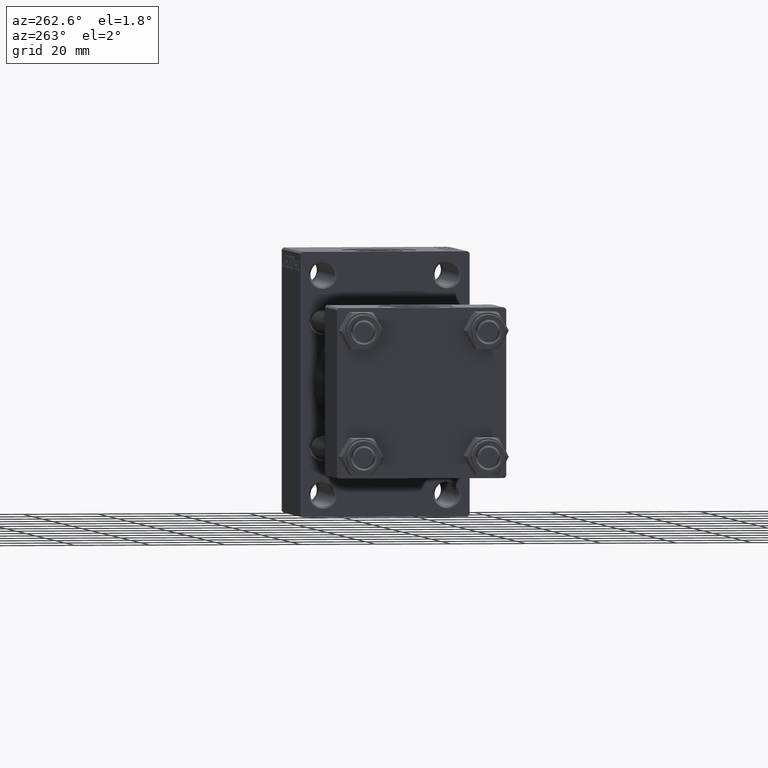
[diagram: clean part render]
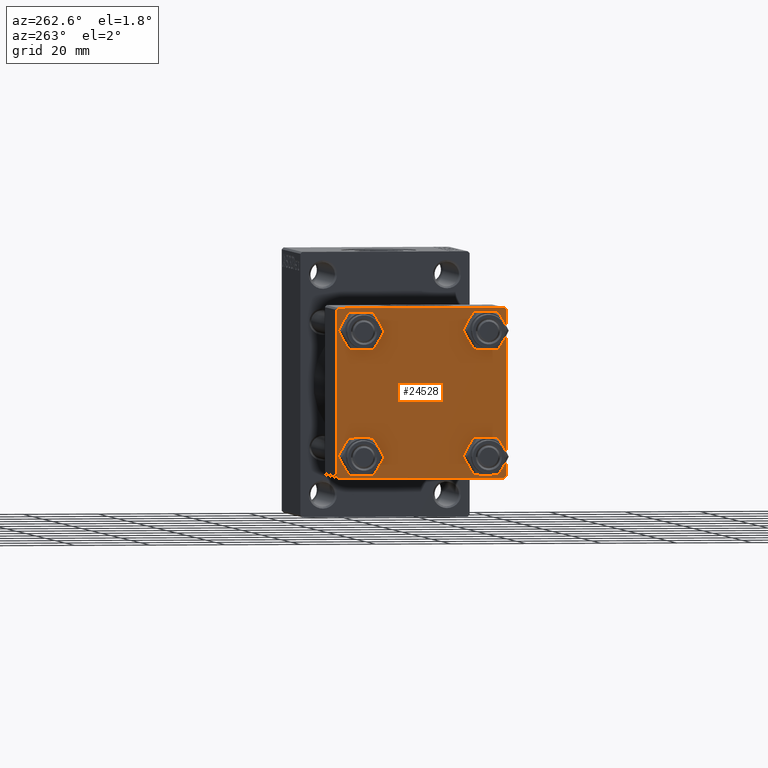
[diagram: same view with one face highlighted and labeled with its STEP entity id]
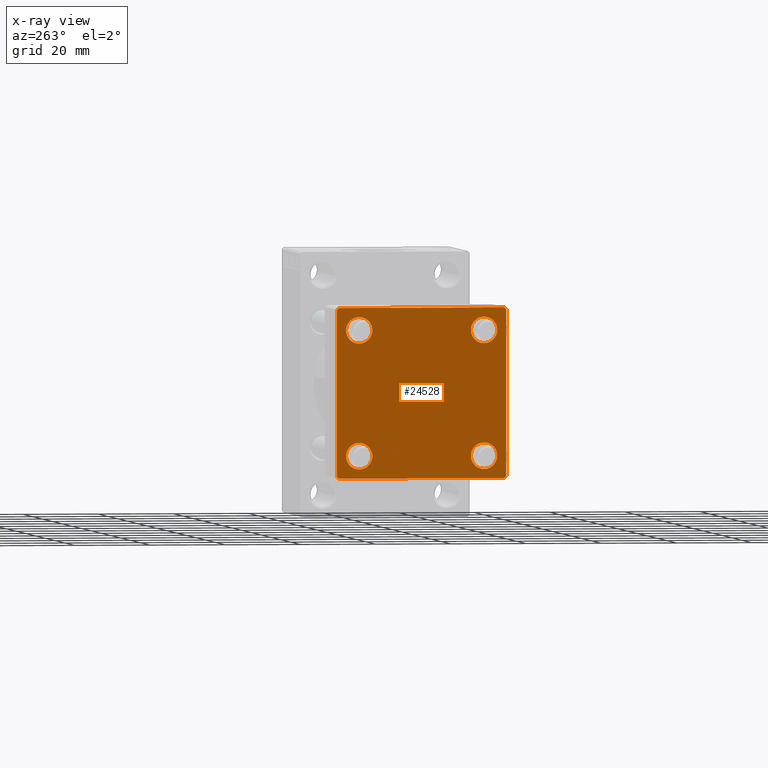
[diagram: x-ray of the same camera — body ghosted, the highlighted face saturated]
A machine part, auxiliary view. The second image highlights one B-rep face of the part: STEP entity #24528.
The next image is the same camera in x-ray: the body ghosted, the highlighted face saturated — about 0% of this face is hidden behind the body in this view.
In plain terms, the highlighted planar face has unit normal (-1, 0, 0).
Its self-contained STEP definition (entity closure, byte-faithful):
#201 = ORIENTED_EDGE ( 'NONE', *, *, #35946, .T. ) ;
#329 = EDGE_CURVE ( 'NONE', #44035, #12001, #27100, .T. ) ;
#506 = EDGE_CURVE ( 'NONE', #31605, #19519, #4771, .T. ) ;
#1425 = AXIS2_PLACEMENT_3D ( 'NONE', #5136, #18868, #41248 ) ;
#1688 = VECTOR ( 'NONE', #26811, 1000.000000000000000 ) ;
#2808 = LINE ( 'NONE', #38946, #22481 ) ;
#2840 = CARTESIAN_POINT ( 'NONE',  ( 0.000000000000000000, 21.99999999999999289, -22.49999999999999645 ) ) ;
#3974 = DIRECTION ( 'NONE',  ( 0.000000000000000000, 0.7071067811865474617, -0.7071067811865474617 ) ) ;
#4089 = EDGE_CURVE ( 'NONE', #25803, #13937, #38972, .T. ) ;
#4208 = CARTESIAN_POINT ( 'NONE',  ( 0.000000000000000000, 22.24999999999999645, 22.24999999999999645 ) ) ;
#4771 = CIRCLE ( 'NONE', #24015, 3.499999999999996003 ) ;
#4791 = LINE ( 'NONE', #15161, #37507 ) ;
#5136 = CARTESIAN_POINT ( 'NONE',  ( 0.000000000000000000, 0.000000000000000000, 0.000000000000000000 ) ) ;
#5433 = EDGE_LOOP ( 'NONE', ( #39262, #10655 ) ) ;
#7107 = VECTOR ( 'NONE', #23603, 999.9999999999998863 ) ;
#7130 = EDGE_CURVE ( 'NONE', #46328, #10516, #47131, .T. ) ;
#7485 = VERTEX_POINT ( 'NONE', #2840 ) ;
#7600 = LINE ( 'NONE', #4208, #40529 ) ;
#8158 = DIRECTION ( 'NONE',  ( 0.000000000000000000, -1.000000000000000000, -7.709882115452476934E-17 ) ) ;
#8304 = VERTEX_POINT ( 'NONE', #45972 ) ;
#8648 = DIRECTION ( 'NONE',  ( -0.000000000000000000, -0.7071067811865426878, -0.7071067811865524577 ) ) ;
#8864 = ORIENTED_EDGE ( 'NONE', *, *, #7130, .T. ) ;
#9882 = ORIENTED_EDGE ( 'NONE', *, *, #18833, .T. ) ;
#10516 = VERTEX_POINT ( 'NONE', #21736 ) ;
#10655 = ORIENTED_EDGE ( 'NONE', *, *, #45011, .T. ) ;
#10685 = ORIENTED_EDGE ( 'NONE', *, *, #506, .T. ) ;
#11343 = CIRCLE ( 'NONE', #13634, 3.499999999999996003 ) ;
#11382 = AXIS2_PLACEMENT_3D ( 'NONE', #31582, #42180, #13050 ) ;
#11691 = AXIS2_PLACEMENT_3D ( 'NONE', #31757, #17064, #46423 ) ;
#11740 = CARTESIAN_POINT ( 'NONE',  ( 0.000000000000000000, 16.59999999999999787, -16.60000000000000497 ) ) ;
#11749 = CARTESIAN_POINT ( 'NONE',  ( 0.000000000000000000, 16.59999999999999787, 16.60000000000000497 ) ) ;
#11781 = CARTESIAN_POINT ( 'NONE',  ( 0.000000000000000000, 22.50000000000000000, 22.50000000000000355 ) ) ;
#11864 = CARTESIAN_POINT ( 'NONE',  ( 0.000000000000000000, 16.59999999999999787, -20.10000000000000142 ) ) ;
#11891 = FACE_OUTER_BOUND ( 'NONE', #31098, .T. ) ;
#12001 = VERTEX_POINT ( 'NONE', #38911 ) ;
#12003 = VECTOR ( 'NONE', #34304, 1000.000000000000000 ) ;
#12783 = DIRECTION ( 'NONE',  ( 1.000000000000000000, -0.000000000000000000, 0.000000000000000000 ) ) ;
#12834 = CARTESIAN_POINT ( 'NONE',  ( 0.000000000000000000, 16.59999999999999787, 16.60000000000000497 ) ) ;
#13050 = DIRECTION ( 'NONE',  ( 0.000000000000000000, 0.000000000000000000, 1.000000000000000000 ) ) ;
#13424 = DIRECTION ( 'NONE',  ( 0.000000000000000000, -0.7071067811865426878, 0.7071067811865524577 ) ) ;
#13634 = AXIS2_PLACEMENT_3D ( 'NONE', #45744, #12783, #27470 ) ;
#13806 = AXIS2_PLACEMENT_3D ( 'NONE', #12834, #30419, #19828 ) ;
#13937 = VERTEX_POINT ( 'NONE', #35226 ) ;
#14466 = EDGE_CURVE ( 'NONE', #21793, #13937, #44745, .T. ) ;
#15119 = DIRECTION ( 'NONE',  ( 0.000000000000000000, 0.000000000000000000, 1.000000000000000000 ) ) ;
#15161 = CARTESIAN_POINT ( 'NONE',  ( 0.000000000000000000, -22.50000000000000000, 22.50000000000000000 ) ) ;
#15417 = DIRECTION ( 'NONE',  ( 1.000000000000000000, -0.000000000000000000, 0.000000000000000000 ) ) ;
#15504 = FACE_BOUND ( 'NONE', #30941, .T. ) ;
#15660 = DIRECTION ( 'NONE',  ( 0.000000000000000000, 0.000000000000000000, 1.000000000000000000 ) ) ;
#15868 = AXIS2_PLACEMENT_3D ( 'NONE', #21569, #42511, #43445 ) ;
#15992 = FACE_BOUND ( 'NONE', #34298, .T. ) ;
#17001 = DIRECTION ( 'NONE',  ( 0.000000000000000000, 0.000000000000000000, 1.000000000000000000 ) ) ;
#17064 = DIRECTION ( 'NONE',  ( 1.000000000000000000, -0.000000000000000000, 0.000000000000000000 ) ) ;
#18449 = CARTESIAN_POINT ( 'NONE',  ( 0.000000000000000000, 16.59999999999999787, -13.10000000000000675 ) ) ;
#18833 = EDGE_CURVE ( 'NONE', #12001, #44035, #21218, .T. ) ;
#18868 = DIRECTION ( 'NONE',  ( -1.000000000000000000, 0.000000000000000000, -0.000000000000000000 ) ) ;
#18994 = CARTESIAN_POINT ( 'NONE',  ( 0.000000000000000000, 21.99999999999999289, 22.50000000000000355 ) ) ;
#19132 = CARTESIAN_POINT ( 'NONE',  ( 0.000000000000000000, -16.59999999999999076, -13.10000000000001030 ) ) ;
#19519 = VERTEX_POINT ( 'NONE', #23833 ) ;
#19828 = DIRECTION ( 'NONE',  ( 0.000000000000000000, 0.000000000000000000, 1.000000000000000000 ) ) ;
#20012 = ORIENTED_EDGE ( 'NONE', *, *, #14466, .F. ) ;
#20200 = CIRCLE ( 'NONE', #43211, 3.499999999999996003 ) ;
#20831 = EDGE_CURVE ( 'NONE', #21793, #8304, #7600, .T. ) ;
#21218 = CIRCLE ( 'NONE', #15868, 3.499999999999996003 ) ;
#21569 = CARTESIAN_POINT ( 'NONE',  ( 0.000000000000000000, -16.59999999999999076, 16.60000000000000853 ) ) ;
#21736 = CARTESIAN_POINT ( 'NONE',  ( 0.000000000000000000, -16.59999999999999076, -20.10000000000000497 ) ) ;
#21793 = VERTEX_POINT ( 'NONE', #18994 ) ;
#22481 = VECTOR ( 'NONE', #13424, 1000.000000000000000 ) ;
#22642 = CARTESIAN_POINT ( 'NONE',  ( 0.000000000000000000, -16.59999999999999076, -16.60000000000000853 ) ) ;
#23233 = CARTESIAN_POINT ( 'NONE',  ( 0.000000000000000000, 22.50000000000000000, 22.50000000000000355 ) ) ;
#23603 = DIRECTION ( 'NONE',  ( -0.000000000000000000, 0.7071067811865525687, 0.7071067811865425767 ) ) ;
#23645 = VERTEX_POINT ( 'NONE', #41632 ) ;
#23833 = CARTESIAN_POINT ( 'NONE',  ( 0.000000000000000000, 16.59999999999999787, 13.10000000000000675 ) ) ;
#24015 = AXIS2_PLACEMENT_3D ( 'NONE', #11749, #33421, #15119 ) ;
#24186 = VECTOR ( 'NONE', #8158, 1000.000000000000000 ) ;
#24528 = ADVANCED_FACE ( 'NONE', ( #15504, #15992, #30200, #30433, #11891 ), #30679, .T. ) ;
#25038 = VERTEX_POINT ( 'NONE', #41135 ) ;
#25207 = ORIENTED_EDGE ( 'NONE', *, *, #26107, .F. ) ;
#25373 = CIRCLE ( 'NONE', #13806, 3.499999999999996003 ) ;
#25803 = VERTEX_POINT ( 'NONE', #27014 ) ;
#26107 = EDGE_CURVE ( 'NONE', #25803, #35101, #4791, .T. ) ;
#26811 = DIRECTION ( 'NONE',  ( 0.000000000000000000, -1.000000000000000000, -2.312964634635742957E-16 ) ) ;
#26955 = LINE ( 'NONE', #41618, #40890 ) ;
#27014 = CARTESIAN_POINT ( 'NONE',  ( 0.000000000000000000, -22.50000000000000000, 22.00000000000000000 ) ) ;
#27100 = CIRCLE ( 'NONE', #11691, 3.499999999999996003 ) ;
#27119 = ORIENTED_EDGE ( 'NONE', *, *, #42503, .T. ) ;
#27470 = DIRECTION ( 'NONE',  ( 0.000000000000000000, 0.000000000000000000, 1.000000000000000000 ) ) ;
#28390 = ORIENTED_EDGE ( 'NONE', *, *, #46610, .T. ) ;
#29113 = ORIENTED_EDGE ( 'NONE', *, *, #39917, .T. ) ;
#30200 = FACE_BOUND ( 'NONE', #5433, .T. ) ;
#30419 = DIRECTION ( 'NONE',  ( 1.000000000000000000, -0.000000000000000000, 0.000000000000000000 ) ) ;
#30433 = FACE_BOUND ( 'NONE', #34430, .T. ) ;
#30679 = PLANE ( 'NONE',  #1425 ) ;
#30941 = EDGE_LOOP ( 'NONE', ( #31857, #9882 ) ) ;
#31098 = EDGE_LOOP ( 'NONE', ( #27119, #201, #29113, #37592, #25207, #42759, #20012, #31323 ) ) ;
#31277 = EDGE_CURVE ( 'NONE', #19519, #31605, #25373, .T. ) ;
#31323 = ORIENTED_EDGE ( 'NONE', *, *, #20831, .T. ) ;
#31544 = CARTESIAN_POINT ( 'NONE',  ( 0.000000000000000000, -16.59999999999999076, 20.10000000000000853 ) ) ;
#31582 = CARTESIAN_POINT ( 'NONE',  ( 0.000000000000000000, -16.59999999999999076, -16.60000000000000853 ) ) ;
#31605 = VERTEX_POINT ( 'NONE', #31768 ) ;
#31757 = CARTESIAN_POINT ( 'NONE',  ( 0.000000000000000000, -16.59999999999999076, 16.60000000000000853 ) ) ;
#31768 = CARTESIAN_POINT ( 'NONE',  ( 0.000000000000000000, 16.59999999999999787, 20.10000000000000142 ) ) ;
#31857 = ORIENTED_EDGE ( 'NONE', *, *, #329, .T. ) ;
#33421 = DIRECTION ( 'NONE',  ( 1.000000000000000000, -0.000000000000000000, 0.000000000000000000 ) ) ;
#34269 = LINE ( 'NONE', #41231, #1688 ) ;
#34298 = EDGE_LOOP ( 'NONE', ( #8864, #28390 ) ) ;
#34304 = DIRECTION ( 'NONE',  ( 0.000000000000000000, 0.000000000000000000, -1.000000000000000000 ) ) ;
#34430 = EDGE_LOOP ( 'NONE', ( #10685, #44723 ) ) ;
#34455 = CIRCLE ( 'NONE', #11382, 3.499999999999996003 ) ;
#34549 = LINE ( 'NONE', #23233, #12003 ) ;
#35101 = VERTEX_POINT ( 'NONE', #40988 ) ;
#35226 = CARTESIAN_POINT ( 'NONE',  ( 0.000000000000000000, -21.99999999999997868, 22.50000000000000000 ) ) ;
#35628 = AXIS2_PLACEMENT_3D ( 'NONE', #22642, #15417, #15660 ) ;
#35946 = EDGE_CURVE ( 'NONE', #23645, #7485, #26955, .T. ) ;
#37186 = EDGE_CURVE ( 'NONE', #40377, #43534, #20200, .T. ) ;
#37254 = DIRECTION ( 'NONE',  ( 1.000000000000000000, -0.000000000000000000, 0.000000000000000000 ) ) ;
#37507 = VECTOR ( 'NONE', #41396, 1000.000000000000000 ) ;
#37592 = ORIENTED_EDGE ( 'NONE', *, *, #41034, .T. ) ;
#38911 = CARTESIAN_POINT ( 'NONE',  ( 0.000000000000000000, -16.59999999999999076, 13.10000000000001030 ) ) ;
#38946 = CARTESIAN_POINT ( 'NONE',  ( 0.000000000000000000, -22.25000000000014566, -22.24999999999984013 ) ) ;
#38972 = LINE ( 'NONE', #41876, #7107 ) ;
#39262 = ORIENTED_EDGE ( 'NONE', *, *, #37186, .T. ) ;
#39917 = EDGE_CURVE ( 'NONE', #7485, #25038, #34269, .T. ) ;
#40377 = VERTEX_POINT ( 'NONE', #18449 ) ;
#40529 = VECTOR ( 'NONE', #3974, 1000.000000000000114 ) ;
#40890 = VECTOR ( 'NONE', #8648, 1000.000000000000000 ) ;
#40988 = CARTESIAN_POINT ( 'NONE',  ( 0.000000000000000000, -22.50000000000000000, -21.99999999999997158 ) ) ;
#41034 = EDGE_CURVE ( 'NONE', #25038, #35101, #2808, .T. ) ;
#41135 = CARTESIAN_POINT ( 'NONE',  ( 0.000000000000000000, -21.99999999999997158, -22.50000000000000711 ) ) ;
#41231 = CARTESIAN_POINT ( 'NONE',  ( 0.000000000000000000, 22.50000000000000000, -22.49999999999999645 ) ) ;
#41248 = DIRECTION ( 'NONE',  ( -0.000000000000000000, 0.000000000000000000, 1.000000000000000000 ) ) ;
#41396 = DIRECTION ( 'NONE',  ( 0.000000000000000000, 0.000000000000000000, -1.000000000000000000 ) ) ;
#41618 = CARTESIAN_POINT ( 'NONE',  ( 0.000000000000000000, 22.25000000000014566, -22.24999999999984013 ) ) ;
#41632 = CARTESIAN_POINT ( 'NONE',  ( 0.000000000000000000, 22.50000000000000000, -21.99999999999996803 ) ) ;
#41876 = CARTESIAN_POINT ( 'NONE',  ( -0.000000000000000000, -22.24999999999984013, 22.25000000000015277 ) ) ;
#42180 = DIRECTION ( 'NONE',  ( 1.000000000000000000, -0.000000000000000000, 0.000000000000000000 ) ) ;
#42503 = EDGE_CURVE ( 'NONE', #8304, #23645, #34549, .T. ) ;
#42511 = DIRECTION ( 'NONE',  ( 1.000000000000000000, -0.000000000000000000, 0.000000000000000000 ) ) ;
#42759 = ORIENTED_EDGE ( 'NONE', *, *, #4089, .T. ) ;
#43211 = AXIS2_PLACEMENT_3D ( 'NONE', #11740, #37254, #17001 ) ;
#43445 = DIRECTION ( 'NONE',  ( 0.000000000000000000, 0.000000000000000000, 1.000000000000000000 ) ) ;
#43534 = VERTEX_POINT ( 'NONE', #11864 ) ;
#44035 = VERTEX_POINT ( 'NONE', #31544 ) ;
#44723 = ORIENTED_EDGE ( 'NONE', *, *, #31277, .T. ) ;
#44745 = LINE ( 'NONE', #11781, #24186 ) ;
#45011 = EDGE_CURVE ( 'NONE', #43534, #40377, #11343, .T. ) ;
#45744 = CARTESIAN_POINT ( 'NONE',  ( 0.000000000000000000, 16.59999999999999787, -16.60000000000000497 ) ) ;
#45972 = CARTESIAN_POINT ( 'NONE',  ( 0.000000000000000000, 22.50000000000000000, 21.99999999999999645 ) ) ;
#46328 = VERTEX_POINT ( 'NONE', #19132 ) ;
#46423 = DIRECTION ( 'NONE',  ( 0.000000000000000000, 0.000000000000000000, 1.000000000000000000 ) ) ;
#46610 = EDGE_CURVE ( 'NONE', #10516, #46328, #34455, .T. ) ;
#47131 = CIRCLE ( 'NONE', #35628, 3.499999999999996003 ) ;